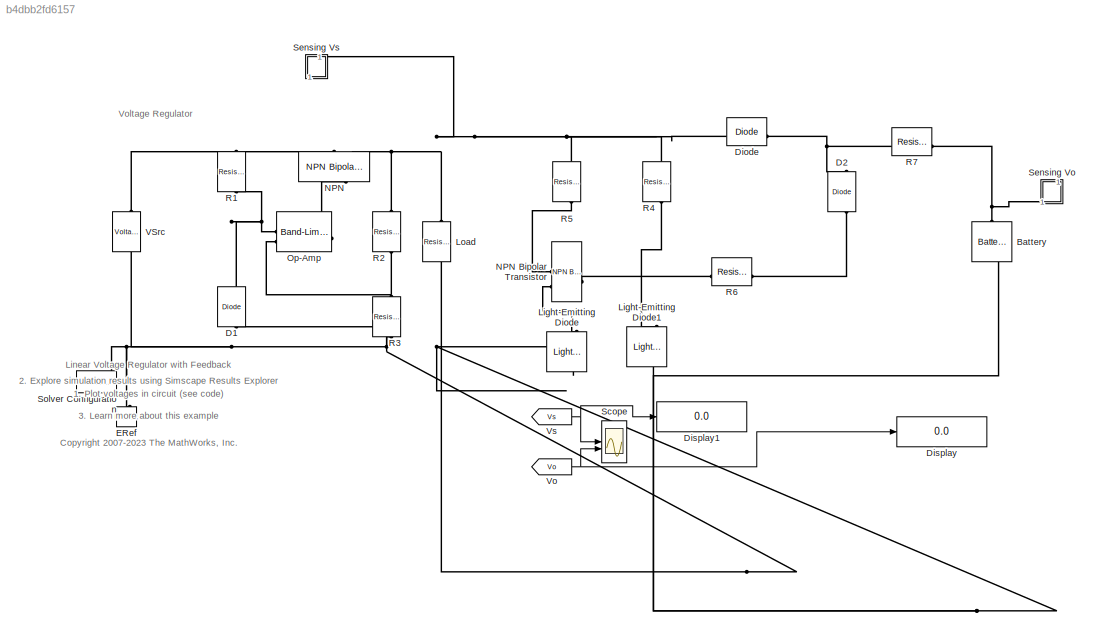
MODEL slx_b4dbb2fd6157
KIND model
CONFIG AbsTol = auto
CONFIG EnableMultiTasking = on
CONFIG FixedStep = auto
CONFIG MaxStep = 1e-6
CONFIG MinStep = auto
CONFIG RelTol = 1e-3
CONFIG SampleTimeConstraint = Unconstrained
CONFIG SolverName = VariableStepAuto
CONFIG StartTime = 0.0
CONFIG StopTime = 0.5
BLOCK [Reference] Battery  REF=batteryecm_lib/Battery
  LibrarySourceBlock = ee_lib/Sources/Battery
  NameLocation = right
  SourceBlock = batteryecm_lib/Battery
  SourceType = Battery
BLOCK [Reference] D1  REF=ee_lib/Semiconductors &
Converters/Diode
  AttributesFormatString = %<BV> %<BV_unit>
  NameLocation = left
  SourceBlock = ee_lib/Semiconductors &\nConverters/Diode
  SourceType = Diode
BLOCK [Reference] D2  REF=ee_lib/Semiconductors &
Converters/Diode
  AttributesFormatString = %<BV> %<BV_unit>
  NameLocation = left
  SourceBlock = ee_lib/Semiconductors &\nConverters/Diode
  SourceType = Diode
BLOCK [Reference] Diode  REF=ee_lib/Semiconductors &
Converters/Diode
  SourceBlock = ee_lib/Semiconductors &\nConverters/Diode
  SourceType = Diode
BLOCK [Display] Display
  Decimation = 1
BLOCK [Display] Display1
  Decimation = 1
BLOCK [Reference] ERef  REF=fl_lib/Electrical/Electrical Elements/Electrical Reference
  NameLocation = left
  SourceBlock = fl_lib/Electrical/Electrical Elements/Electrical Reference
  SourceType = Electrical Reference
BLOCK [Reference] Light-Emitting Diode  REF=ee_lib/Sensors &
Transducers/Light-Emitting Diode
  NameLocation = left
  SourceBlock = ee_lib/Sensors &\nTransducers/Light-Emitting Diode
  SourceType = Light-Emitting Diode
BLOCK [Reference] Light-Emitting Diode1  REF=ee_lib/Sensors &
Transducers/Light-Emitting Diode
  NameLocation = left
  SourceBlock = ee_lib/Sensors &\nTransducers/Light-Emitting Diode
  SourceType = Light-Emitting Diode
BLOCK [Reference] Load  REF=fl_lib/Electrical/Electrical Elements/Resistor
  NameLocation = right
  SourceBlock = fl_lib/Electrical/Electrical Elements/Resistor
  SourceType = Resistor
BLOCK [Reference] NPN  REF=ee_lib/Semiconductors &
Converters/NPN Bipolar
Transistor
  NameLocation = left
  SourceBlock = ee_lib/Semiconductors &\nConverters/NPN Bipolar\nTransistor
  SourceType = NPN Bipolar\nTransistor
BLOCK [Reference] NPN Bipolar Transistor  REF=ee_lib/Semiconductors &
Converters/NPN Bipolar
Transistor
  NameLocation = top
  SourceBlock = ee_lib/Semiconductors &\nConverters/NPN Bipolar\nTransistor
  SourceType = NPN Bipolar\nTransistor
BLOCK [Reference] Op-Amp  REF=ee_lib/Integrated Circuits/Band-Limited Op-Amp
  SourceBlock = ee_lib/Integrated Circuits/Band-Limited Op-Amp
  SourceType = Band-Limited Op-Amp
BLOCK [Reference] R1  REF=fl_lib/Electrical/Electrical Elements/Resistor
  AttributesFormatString = %<R> %<R_unit>
  NameLocation = left
  SourceBlock = fl_lib/Electrical/Electrical Elements/Resistor
  SourceType = Resistor
BLOCK [Reference] R2  REF=fl_lib/Electrical/Electrical Elements/Resistor
  AttributesFormatString = %<R> %<R_unit>
  NameLocation = left
  SourceBlock = fl_lib/Electrical/Electrical Elements/Resistor
  SourceType = Resistor
BLOCK [Reference] R3  REF=fl_lib/Electrical/Electrical Elements/Resistor
  AttributesFormatString = %<R> %<R_unit>
  NameLocation = left
  SourceBlock = fl_lib/Electrical/Electrical Elements/Resistor
  SourceType = Resistor
BLOCK [Reference] R4  REF=fl_lib/Electrical/Electrical Elements/Resistor
  AttributesFormatString = %<R> %<R_unit>
  NameLocation = left
  SourceBlock = fl_lib/Electrical/Electrical Elements/Resistor
  SourceType = Resistor
BLOCK [Reference] R5  REF=fl_lib/Electrical/Electrical Elements/Resistor
  AttributesFormatString = %<R> %<R_unit>
  NameLocation = left
  SourceBlock = fl_lib/Electrical/Electrical Elements/Resistor
  SourceType = Resistor
BLOCK [Reference] R6  REF=fl_lib/Electrical/Electrical Elements/Resistor
  AttributesFormatString = %<R> %<R_unit>
  NameLocation = top
  SourceBlock = fl_lib/Electrical/Electrical Elements/Resistor
  SourceType = Resistor
BLOCK [Reference] R7  REF=fl_lib/Electrical/Electrical Elements/Resistor
  AttributesFormatString = %<R> %<R_unit>
  NameLocation = top
  SourceBlock = fl_lib/Electrical/Electrical Elements/Resistor
  SourceType = Resistor
BLOCK [Scope] Scope
  Floating = off
  NumInputPorts = 2
  ScopeSpecificationString = Simulink.scopes.TimeScopeBlockCfg('CurrentConfiguration', extmgr.ConfigurationSet(extmgr.Configuration('Core','General UI',true),extmgr.Configuration('Core','Source UI',true),extmgr.Configuration('Sources','WiredSimulink',true,'DataLoggingSaveFormat','StructureWithTime','DataLoggingDecimation','1','DataLoggingDecimateData',true),extmgr.Configuration('Visuals','Time Domain',true,'SerializedDisplays...<+2440ch>
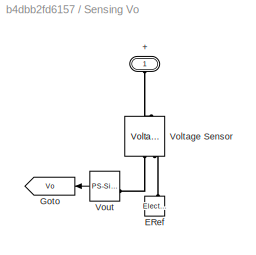
BLOCK [SubSystem] Sensing Vo
  CopyFcn = set_param(gcb,'LinkStatus','none')
  NameLocation = right
  PortSchema = {"entries":[{"content":{"sides":[{"content":{},"type":"ConnectorPlacement.EquallySpacedRectSide","uuid":"27e400a7-c50d-4ead-b088-3393048edbed"},{"content":{"side":"RIGHT"},"type":"ConnectorPlacement.EquallySpacedRectSide","uuid":"aed8b1c6-8739-4afa-bc7c-82633e19ac3e"},{"content":{"connectorIds":["LConn1"],"side":"TOP"},"type":"ConnectorPlacement.EquallySpacedRectSide","uuid":"4f205267-a480-43e2-ab...<+202ch>
BLOCK [PMIOPort] Sensing Vo/+
  NameLocation = right
  Side = Left
BLOCK [Reference] Sensing Vo/ERef  REF=fl_lib/Electrical/Electrical Elements/Electrical Reference
  NameLocation = right
  SourceBlock = fl_lib/Electrical/Electrical Elements/Electrical Reference
  SourceType = Electrical Reference
BLOCK [Goto] Sensing Vo/Goto
  GotoTag = Vo
  TagVisibility = global
BLOCK [Reference] Sensing Vo/Voltage Sensor  REF=fl_lib/Electrical/Electrical Sensors/Voltage Sensor
  NameLocation = right
  SourceBlock = fl_lib/Electrical/Electrical Sensors/Voltage Sensor
  SourceType = Voltage Sensor
BLOCK [Reference] Sensing Vo/Vout  REF=nesl_utility/PS-Simulink
Converter
  SourceBlock = nesl_utility/PS-Simulink\nConverter
  SourceType = PS-Simulink\nConverter
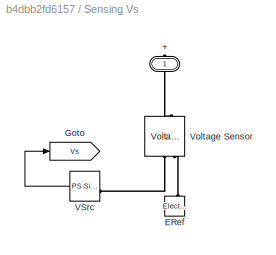
BLOCK [SubSystem] Sensing Vs
  CopyFcn = set_param(gcb,'LinkStatus','none')
  NameLocation = right
  PortSchema = {"entries":[{"content":{"sides":[{"content":{},"type":"ConnectorPlacement.EquallySpacedRectSide","uuid":"27e400a7-c50d-4ead-b088-3393048edbed"},{"content":{"side":"RIGHT"},"type":"ConnectorPlacement.EquallySpacedRectSide","uuid":"aed8b1c6-8739-4afa-bc7c-82633e19ac3e"},{"content":{"side":"TOP"},"type":"ConnectorPlacement.EquallySpacedRectSide","uuid":"4f205267-a480-43e2-ab4e-10b2434bab4b"},{"conten...<+328ch>
BLOCK [PMIOPort] Sensing Vs/+
  NameLocation = right
  Side = Right
BLOCK [Reference] Sensing Vs/ERef  REF=fl_lib/Electrical/Electrical Elements/Electrical Reference
  NameLocation = right
  SourceBlock = fl_lib/Electrical/Electrical Elements/Electrical Reference
  SourceType = Electrical Reference
BLOCK [Goto] Sensing Vs/Goto
  GotoTag = Vs
  TagVisibility = global
BLOCK [Reference] Sensing Vs/VSrc  REF=nesl_utility/PS-Simulink
Converter
  SourceBlock = nesl_utility/PS-Simulink\nConverter
  SourceType = PS-Simulink\nConverter
BLOCK [Reference] Sensing Vs/Voltage Sensor  REF=fl_lib/Electrical/Electrical Sensors/Voltage Sensor
  NameLocation = right
  SourceBlock = fl_lib/Electrical/Electrical Sensors/Voltage Sensor
  SourceType = Voltage Sensor
BLOCK [Reference] Solver Configuration  REF=nesl_utility/Solver
Configuration
  SourceBlock = nesl_utility/Solver\nConfiguration
  SourceType = Solver\nConfiguration
BLOCK [Reference] VSrc  REF=ee_lib/Sources/Voltage Source
  AttributesFormatString = %<dc_voltage>%<dc_voltage_unit>+\n%<ac_voltage>%<ac_voltage_unit>@\n%<ac_frequency>%<ac_frequency_unit>
  NameLocation = left
  SourceBlock = ee_lib/Sources/Voltage Source
  SourceType = Voltage Source
BLOCK [From] Vo
  GotoTag = Vo
  TagVisibility = global
BLOCK [From] Vs
  GotoTag = Vs
  TagVisibility = global
ANNOTATION (root): 1. Plot voltages in circuit ( see code ) 2. Explore simulation results using Simscape Results Explorer 3. Learn more about this example
ANNOTATION (root): <copyright redacted>
ANNOTATION (root): Linear Voltage Regulator with Feedback
ANNOTATION (root): Voltage Regulator
LINE Sensing Vo/Vout:1 -> Sensing Vo/Goto:1
LINE Sensing Vs/VSrc:1 -> Sensing Vs/Goto:1
NET Vo:1 -> Display:1, Scope:2
NET Vs:1 -> Display1:1, Scope:1
PNET net1: Battery:LConn1 -- R7:LConn1 -- Sensing Vo:LConn1
PNET net2: Battery:RConn1 -- D1:LConn1 -- ERef:LConn1 -- Light-Emitting Diode1:RConn1 -- Light-Emitting Diode:RConn1 -- Load:RConn1 -- R3:RConn1 -- Solver Configuration:RConn1 -- VSrc:RConn1
PNET net3: D1:RConn1 -- Op-Amp:LConn1 -- R1:RConn1
PLINE D2:LConn1 -- R6:LConn1
PNET net4: D2:RConn1 -- Diode:RConn1 -- R7:RConn1
PNET net5: Diode:LConn1 -- Load:LConn1 -- NPN:RConn2 -- R2:LConn1 -- R4:LConn1 -- R5:LConn1 -- Sensing Vs:RConn1
PLINE Light-Emitting Diode1:LConn2 -- R4:RConn1
PLINE Light-Emitting Diode:LConn2 -- NPN Bipolar Transistor:RConn2
PLINE NPN Bipolar Transistor:LConn1 -- R6:RConn1
PLINE NPN Bipolar Transistor:RConn1 -- R5:RConn1
PLINE NPN:LConn1 -- Op-Amp:RConn1
PNET net6: NPN:RConn1 -- R1:LConn1 -- VSrc:LConn1
PNET net7: Op-Amp:LConn2 -- R2:RConn1 -- R3:LConn1
PLINE Sensing Vo/+:RConn1 -- Sensing Vo/Voltage Sensor:LConn1
PLINE Sensing Vo/ERef:LConn1 -- Sensing Vo/Voltage Sensor:RConn2
PLINE Sensing Vo/Voltage Sensor:RConn1 -- Sensing Vo/Vout:LConn1
PLINE Sensing Vs/+:RConn1 -- Sensing Vs/Voltage Sensor:LConn1
PLINE Sensing Vs/ERef:LConn1 -- Sensing Vs/Voltage Sensor:RConn2
PLINE Sensing Vs/VSrc:LConn1 -- Sensing Vs/Voltage Sensor:RConn1
note: NET lines group one-source signal fan-out (src -> all destinations, sorted); 1:1 wires keep LINE; PNET lines group multi-terminal physical nets as a canonical sorted terminal list (undirected conserving connections); 2-terminal nets keep the pairwise PLINE form
